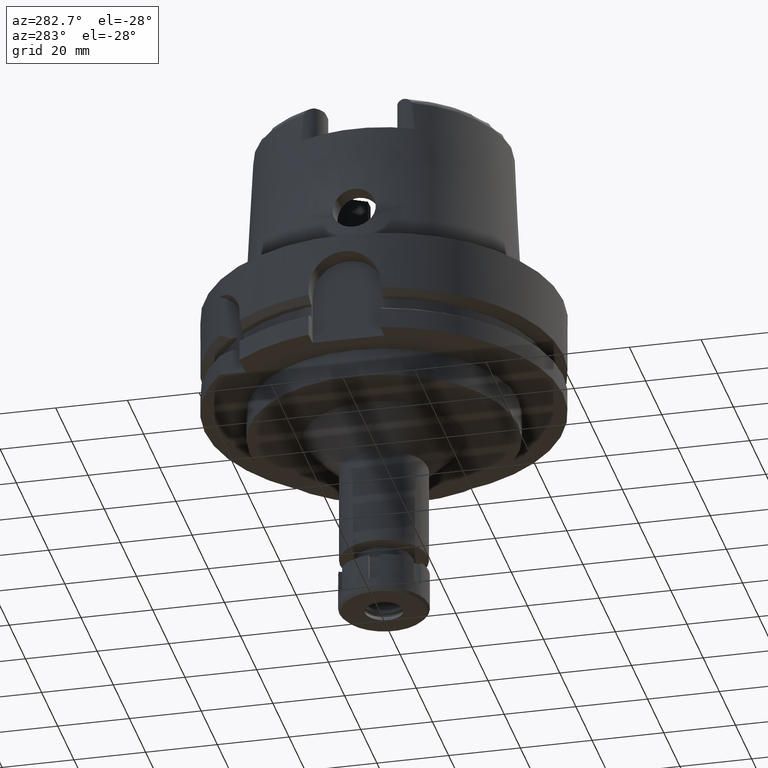
[diagram: clean part render]
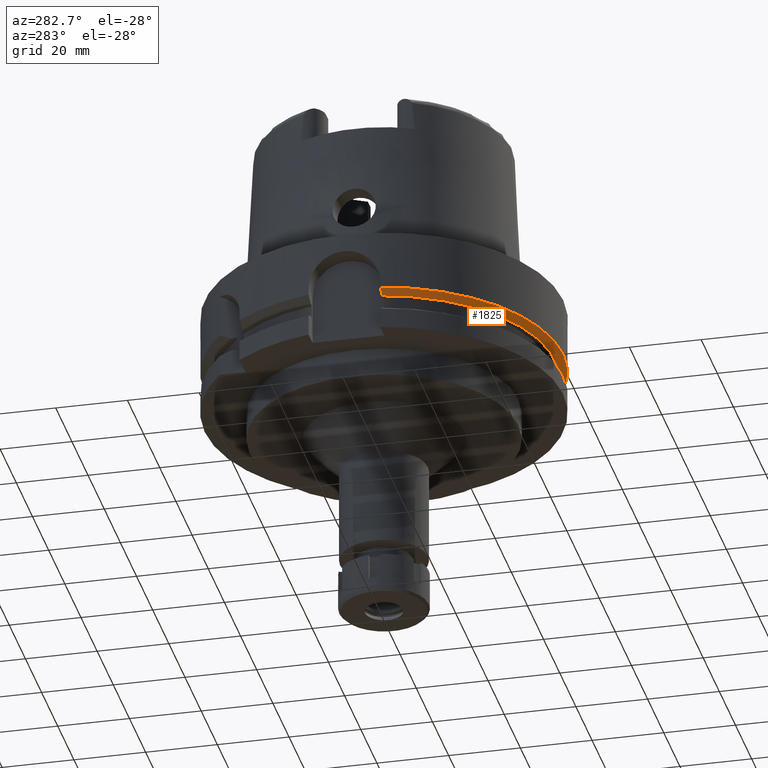
[diagram: same view with one face highlighted and labeled with its STEP entity id]
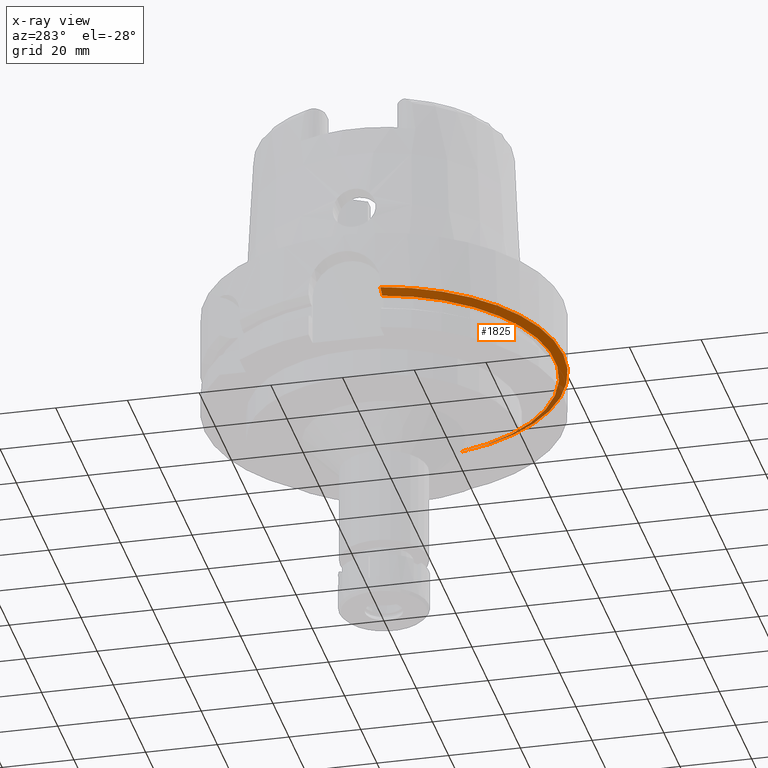
[diagram: x-ray of the same camera — body ghosted, the highlighted face saturated]
A machine part, auxiliary view. The second image highlights one B-rep face of the part: STEP entity #1825.
The next image is the same camera in x-ray: the body ghosted, the highlighted face saturated — about 12% of this face is hidden behind the body in this view.
In plain terms, the highlighted conical surface has half-angle 60 deg.
Its self-contained STEP definition (entity closure, byte-faithful):
#332 = CIRCLE ( 'NONE', #5982, 50.00000000000000000 ) ;
#564 = CARTESIAN_POINT ( 'NONE',  ( 48.50399904748000068, -11.00000000000000000, -16.90503024962000111 ) ) ;
#568 = ORIENTED_EDGE ( 'NONE', *, *, #3231, .F. ) ;
#649 = ORIENTED_EDGE ( 'NONE', *, *, #1081, .F. ) ;
#829 = EDGE_CURVE ( 'NONE', #3965, #4908, #5087, .T. ) ;
#912 = CARTESIAN_POINT ( 'NONE',  ( -46.56083740329999898, -10.00000000000000000, -18.12500000000000000 ) ) ;
#992 = DIRECTION ( 'NONE',  ( 0.0000000000000000000, 1.000000000000000000, 0.0000000000000000000 ) ) ;
#1081 = EDGE_CURVE ( 'NONE', #3199, #3390, #332, .T. ) ;
#1084 = CARTESIAN_POINT ( 'NONE',  ( 46.60605711264999940, -11.00000000000000000, -17.97261191788999923 ) ) ;
#1154 = EDGE_LOOP ( 'NONE', ( #5367, #568, #649, #5482, #5340 ) ) ;
#1350 = CARTESIAN_POINT ( 'NONE',  ( -48.18041161677000161, -10.00000000000000000, -17.21015586611000003 ) ) ;
#1424 = DIRECTION ( 'NONE',  ( 0.0000000000000000000, 0.0000000000000000000, 1.000000000000000000 ) ) ;
#1825 = ADVANCED_FACE ( 'NONE', ( #2782 ), #6096, .T. ) ;
#1826 = CARTESIAN_POINT ( 'NONE',  ( 0.0000000000000000000, 0.0000000000000000000, -16.75240473580999989 ) ) ;
#2018 = CARTESIAN_POINT ( 'NONE',  ( 48.77499359303000404, -11.00000000000000000, -16.75240473580999989 ) ) ;
#2366 = CIRCLE ( 'NONE', #4053, 49.99999999999997868 ) ;
#2451 = CARTESIAN_POINT ( 'NONE',  ( 47.96191616323000062, -11.00000000000000000, -17.21020456769999996 ) ) ;
#2537 = CARTESIAN_POINT ( 'NONE',  ( 47.14851446809999658, -11.00000000000000000, -17.66774350266999960 ) ) ;
#2641 = CARTESIAN_POINT ( 'NONE',  ( -46.56083740329999898, -10.00000000000000000, -18.12500000000000000 ) ) ;
#2782 = FACE_OUTER_BOUND ( 'NONE', #1154, .T. ) ;
#2857 = CARTESIAN_POINT ( 'NONE',  ( -46.83084020607000042, -10.00000000000000000, -17.97258933137000270 ) ) ;
#3000 = CARTESIAN_POINT ( 'NONE',  ( 0.0000000000000000000, -50.00000000000000000, -16.75240473580999989 ) ) ;
#3199 = VERTEX_POINT ( 'NONE', #3000 ) ;
#3205 = DIRECTION ( 'NONE',  ( 0.0000000000000000000, -1.000000000000000000, 0.0000000000000000000 ) ) ;
#3231 = EDGE_CURVE ( 'NONE', #3390, #4908, #4141, .T. ) ;
#3334 = CARTESIAN_POINT ( 'NONE',  ( -48.98979485565999425, -10.00000000000000000, -16.75240473580999989 ) ) ;
#3390 = VERTEX_POINT ( 'NONE', #5495 ) ;
#3407 = AXIS2_PLACEMENT_3D ( 'NONE', #5654, #4720, #992 ) ;
#3450 = EDGE_CURVE ( 'NONE', #5304, #3199, #2366, .T. ) ;
#3586 = DIRECTION ( 'NONE',  ( -0.9777047459300259868, -0.2099843560504055240, 0.0000000000000000000 ) ) ;
#3618 = CARTESIAN_POINT ( 'NONE',  ( 0.0000000000000000000, 0.0000000000000000000, -18.12500000000000000 ) ) ;
#3965 = VERTEX_POINT ( 'NONE', #2641 ) ;
#4053 = AXIS2_PLACEMENT_3D ( 'NONE', #1826, #1424, #5177 ) ;
#4071 = B_SPLINE_CURVE_WITH_KNOTS ( 'NONE', 3,
 ( #912, #2857, #6042, #1350, #5134, #3334 ),
 .UNSPECIFIED., .F., .F.,
 ( 4, 1, 1, 4 ),
 ( 0.0000000000000000000, 0.3333333333333000081, 0.6666666666667000474, 1.000000000000000000 ),
 .UNSPECIFIED. ) ;
#4126 = EDGE_CURVE ( 'NONE', #3965, #5304, #4071, .T. ) ;
#4135 = DIRECTION ( 'NONE',  ( 0.0000000000000000000, 0.0000000000000000000, 1.000000000000000000 ) ) ;
#4141 = B_SPLINE_CURVE_WITH_KNOTS ( 'NONE', 3,
 ( #2018, #564, #2451, #2537, #1084, #4870 ),
 .UNSPECIFIED., .F., .F.,
 ( 4, 1, 1, 4 ),
 ( 0.0000000000000000000, 0.3333333333333000081, 0.6666666666667000474, 1.000000000000000000 ),
 .UNSPECIFIED. ) ;
#4596 = AXIS2_PLACEMENT_3D ( 'NONE', #3618, #5518, #3586 ) ;
#4720 = DIRECTION ( 'NONE',  ( 0.0000000000000000000, 0.0000000000000000000, 1.000000000000000000 ) ) ;
#4870 = CARTESIAN_POINT ( 'NONE',  ( 46.33477721644000269, -11.00000000000000000, -18.12500000000000000 ) ) ;
#4908 = VERTEX_POINT ( 'NONE', #5599 ) ;
#5087 = CIRCLE ( 'NONE', #4596, 47.62259526419000366 ) ;
#5134 = CARTESIAN_POINT ( 'NONE',  ( -48.72002593967000195, -10.00000000000000000, -16.90500907969000011 ) ) ;
#5177 = DIRECTION ( 'NONE',  ( -0.9797958971132723072, -0.1999999999999946265, 0.0000000000000000000 ) ) ;
#5304 = VERTEX_POINT ( 'NONE', #6044 ) ;
#5340 = ORIENTED_EDGE ( 'NONE', *, *, #4126, .F. ) ;
#5367 = ORIENTED_EDGE ( 'NONE', *, *, #829, .T. ) ;
#5482 = ORIENTED_EDGE ( 'NONE', *, *, #3450, .F. ) ;
#5495 = CARTESIAN_POINT ( 'NONE',  ( 48.77499359303000404, -11.00000000000000000, -16.75240473580999989 ) ) ;
#5518 = DIRECTION ( 'NONE',  ( 0.0000000000000000000, 0.0000000000000000000, 1.000000000000000000 ) ) ;
#5599 = CARTESIAN_POINT ( 'NONE',  ( 46.33477721644000269, -11.00000000000000000, -18.12500000000000000 ) ) ;
#5654 = CARTESIAN_POINT ( 'NONE',  ( 0.0000000000000000000, 0.0000000000000000000, -17.43870236789999950 ) ) ;
#5947 = CARTESIAN_POINT ( 'NONE',  ( 0.0000000000000000000, 0.0000000000000000000, -16.75240473580999989 ) ) ;
#5982 = AXIS2_PLACEMENT_3D ( 'NONE', #5947, #4135, #3205 ) ;
#6042 = CARTESIAN_POINT ( 'NONE',  ( -47.37076227628000424, -10.00000000000000000, -17.66769351206999872 ) ) ;
#6044 = CARTESIAN_POINT ( 'NONE',  ( -48.98979485565999425, -10.00000000000000000, -16.75240473580999989 ) ) ;
#6096 = CONICAL_SURFACE ( 'NONE', #3407, 48.81129763208999606, 1.047197551196400456 ) ;